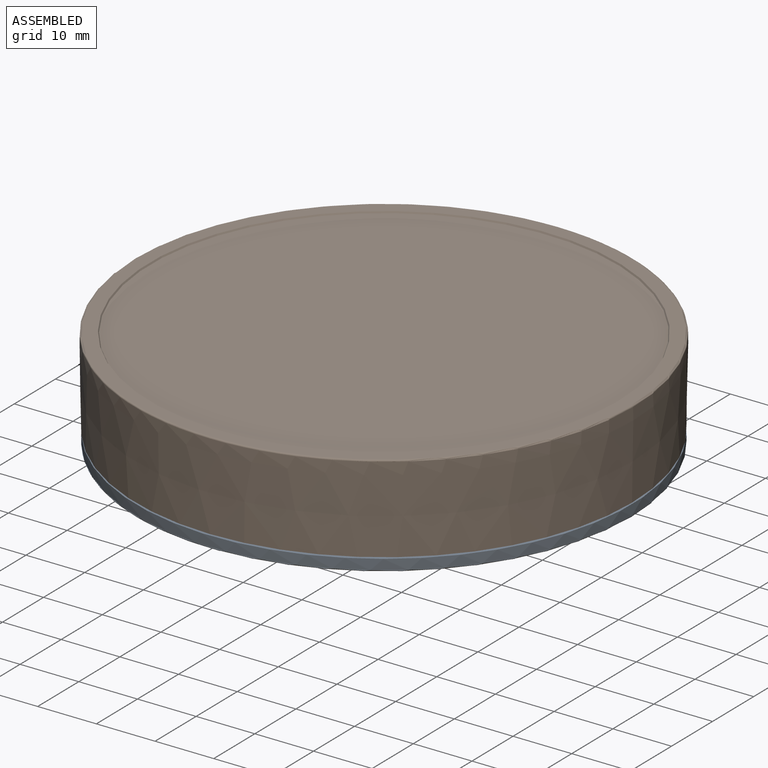
[diagram: assembled view]
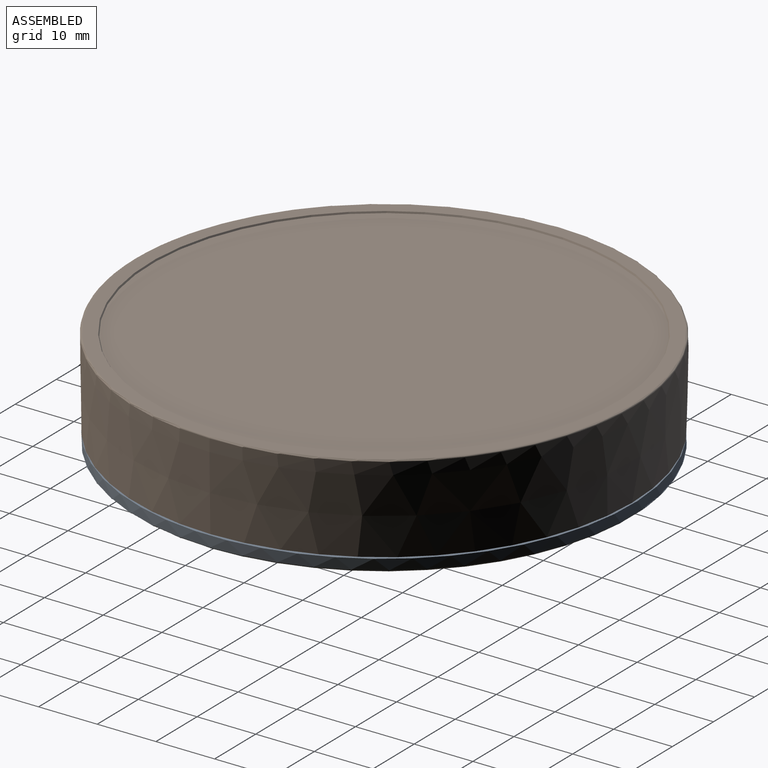
[diagram: assembled view, second angle]
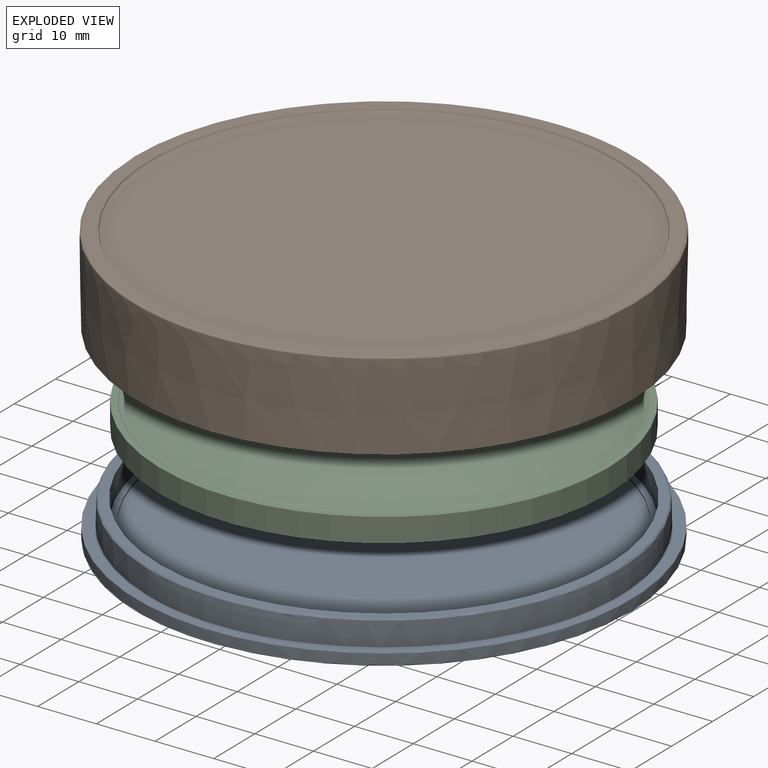
[diagram: exploded view]
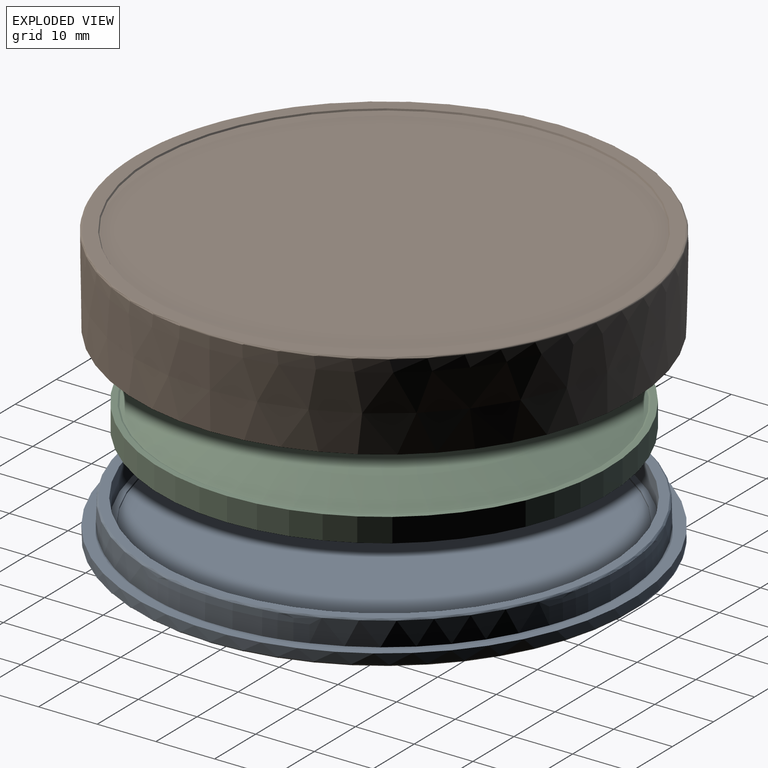
[diagram: exploded view, second angle]
ASSEMBLY  parts=3 mates=2
PART A: 45 faces, bbox 91.5x91.5x6.4 mm
  f0: cone r=40.17mm half-angle=1deg, axis (0,0,-1), area 592.7mm2, adj f10,f12,f13,f14,f15,f16,f19,f20
  f1: plane 79.83x79.83mm, normal (0,0,1), area 380.5mm2, adj f2,f44
  f2: cone r=38.3mm half-angle=1deg, axis (0,0,1), area 917.9mm2, adj f1,f3
  f3: plane 76.61x76.61mm, normal (0,0,1), area 240.2mm2, adj f2,f4
  f4: cone r=37.29mm half-angle=1deg, axis (0,0,1), area 59.5mm2, adj f3,f5
  f5: plane 74.57x74.57mm, normal (0,0,1), area 4367.9mm2, adj f4
  f6: plane 79.11x79.11mm, normal (0,0,-1), area 4915.6mm2, adj f7
  f7: cone r=39.7mm half-angle=30deg, axis (0,0,-1), area 73mm2, adj f6,f8
  f8: plane 83.99x83.99mm, normal (0,0,-1), area 587.8mm2, adj f7,f11
  f9: cone r=42.28mm half-angle=1deg, axis (0,0,1), area 473.4mm2, adj f10,f11
  f10: plane 84.56x84.56mm, normal (0,0,1), area 519.7mm2, adj f0,f9,f17,f18,f19,f25,f26,f27
  f11: torus R=41.99mm, axis (0,0,1), area 104.5mm2, adj f8,f9
  f12: cone r=35.81mm half-angle=4.7deg, axis (0,0,-1), area 5.6mm2, adj f0,f16,f18
  f13: cone r=35.81mm half-angle=4.7deg, axis (0,0,-1), area 5.6mm2, adj f0,f15,f16,f19
  f14: plane 2.88x0.05mm, normal (-0.36,-0.93,0), area 0mm2, adj f0,f18
  f15: plane 0x0mm, normal (-0.36,0.93,0), area 0mm2, adj f0,f13
  f16: cone r=40.27mm half-angle=4.7deg, axis (0,0,-1), area 16.7mm2, adj f0,f12,f13,f17
  f17: cone r=40.32mm half-angle=1deg, axis (0,0,-1), area 40.5mm2, adj f10,f16,f18,f19
  f18: cone r=35.86mm half-angle=1deg, axis (0,0,-1), area 20.2mm2, adj f10,f12,f14,f17
  f19: cone r=35.86mm half-angle=1deg, axis (0,0,-1), area 20.2mm2, adj f0,f10,f13,f17
  f20: cone r=35.81mm half-angle=4.7deg, axis (0,0,-1), area 5.6mm2, adj f0,f24,f26
  f21: cone r=35.81mm half-angle=4.7deg, axis (0,0,-1), area 5.6mm2, adj f0,f23,f24,f27
  f22: plane 2.88x0.05mm, normal (-0.93,0.36,0), area 0mm2, adj f0,f26
  f23: plane 0x0mm, normal (0.93,0.36,0), area 0mm2, adj f0,f21
  f24: cone r=40.27mm half-angle=4.7deg, axis (0,0,-1), area 16.7mm2, adj f0,f20,f21,f25
  f25: cone r=40.32mm half-angle=1deg, axis (0,0,-1), area 40.5mm2, adj f10,f24,f26,f27
  f26: cone r=35.86mm half-angle=1deg, axis (0,0,-1), area 20.2mm2, adj f10,f20,f22,f25
  f27: cone r=35.86mm half-angle=1deg, axis (0,0,-1), area 20.2mm2, adj f0,f10,f21,f25
  f28: cone r=35.81mm half-angle=4.7deg, axis (0,0,-1), area 5.6mm2, adj f0,f32,f34
  f29: cone r=35.81mm half-angle=4.7deg, axis (0,0,-1), area 5.6mm2, adj f0,f31,f32,f35
  f30: plane 2.88x0.05mm, normal (0.36,0.93,0), area 0mm2, adj f0,f34
  f31: plane 0x0mm, normal (0.36,-0.93,0), area 0mm2, adj f0,f29
  f32: cone r=40.27mm half-angle=4.7deg, axis (0,0,-1), area 16.7mm2, adj f28,f29,f33,f44
  f33: cone r=40.32mm half-angle=1deg, axis (0,0,-1), area 40.5mm2, adj f10,f32,f34,f35
  f34: cone r=35.86mm half-angle=1deg, axis (0,0,-1), area 20.2mm2, adj f10,f28,f30,f33
  f35: cone r=35.86mm half-angle=1deg, axis (0,0,-1), area 20.2mm2, adj f0,f10,f29,f33
  f36: cone r=35.81mm half-angle=4.7deg, axis (0,0,-1), area 5.6mm2, adj f0,f40,f42
  f37: cone r=35.81mm half-angle=4.7deg, axis (0,0,-1), area 5.6mm2, adj f0,f39,f40,f43
  f38: plane 2.88x0.05mm, normal (0.93,-0.36,0), area 0mm2, adj f0,f42
  f39: plane 0x0mm, normal (-0.93,-0.36,0), area 0mm2, adj f0,f37
  f40: cone r=40.27mm half-angle=4.7deg, axis (0,0,-1), area 16.7mm2, adj f0,f36,f37,f41
  f41: cone r=40.32mm half-angle=1deg, axis (0,0,-1), area 40.5mm2, adj f10,f40,f42,f43
  f42: cone r=35.86mm half-angle=1deg, axis (0,0,-1), area 20.2mm2, adj f10,f36,f38,f41
  f43: cone r=35.86mm half-angle=1deg, axis (0,0,-1), area 20.2mm2, adj f0,f10,f37,f41
  f44: cone r=40.18mm half-angle=45.5deg, axis (0,0,-1), area 91.2mm2, adj f0,f1,f32
PART B: 24 faces, bbox 91.9x91.9x15 mm
  f0: plane 79.45x79.44mm, normal (0,0,-1), area 4947.4mm2, adj f1,f2,f3,f11,f12,f14,f15,f16
  f1: cone r=39.73mm half-angle=3deg, axis (0,0,-1), area 692.4mm2, adj f0,f4,f12,f19
  f2: cone r=39.73mm half-angle=3deg, axis (0,0,-1), area 692.4mm2, adj f0,f4,f15,f20
  f3: cone r=39.73mm half-angle=3deg, axis (0,0,-1), area 692.4mm2, adj f0,f4,f11,f16
  f4: cone r=40.24mm half-angle=1deg, axis (0,0,-1), area 1090.9mm2, adj f1,f2,f3,f5,f13,f17,f21
  f5: plane 84.56x84.56mm, normal (0,0,-1), area 527.9mm2, adj f4,f6
  f6: cone r=42.28mm half-angle=1deg, axis (0,0,1), area 3389.8mm2, adj f5,f7
  f7: cone r=42.5mm half-angle=1deg, axis (0,0,-1), area 543.7mm2, adj f6,f23
  f8: plane 84.42x84.42mm, normal (0,0,1), area 591mm2, adj f9,f23
  f9: cone r=39.92mm half-angle=30deg, axis (0,0,1), area 73.4mm2, adj f8,f10
  f10: plane 79.55x79.55mm, normal (0,0,1), area 4969.9mm2, adj f9
  f11: plane 8.41x2.68mm, normal (0,1,-0.02), area 20.1mm2, adj f0,f3,f13,f14
  f12: plane 8.41x2.68mm, normal (0,-1,-0.02), area 20.1mm2, adj f0,f1,f13,f14
  f13: plane 2.54x1.27mm, normal (0,0,-1), area 3.2mm2, adj f4,f11,f12,f14
  f14: plane 8.41x1.56mm, normal (-1,0,-0.02), area 11.9mm2, adj f0,f11,f12,f13
  f15: plane 8.41x2.4mm, normal (-0.87,-0.5,-0.02), area 20.1mm2, adj f0,f2,f17,f18
  f16: plane 8.41x2.25mm, normal (0.87,0.5,-0.02), area 20.1mm2, adj f0,f3,f17,f18
  f17: plane 2.83x2.37mm, normal (0,0,-1), area 3.2mm2, adj f4,f15,f16,f18
  f18: plane 8.41x1.35mm, normal (0.5,-0.87,-0.02), area 11.9mm2, adj f0,f15,f16,f17
  f19: plane 8.41x2.25mm, normal (0.87,-0.5,-0.02), area 20.1mm2, adj f0,f1,f21,f22
  f20: plane 8.41x2.4mm, normal (-0.87,0.5,-0.02), area 20.1mm2, adj f0,f2,f21,f22
  f21: plane 2.83x2.37mm, normal (0,0,-1), area 3.2mm2, adj f4,f19,f20,f22
  f22: plane 8.41x1.35mm, normal (0.5,0.87,-0.02), area 11.9mm2, adj f0,f19,f20,f21
  f23: torus R=42.21mm, axis (0,0,-1), area 105mm2, adj f7,f8
PART C: 7 faces, bbox 76.5x76.5x11.2 mm
  f0: cone r=37.22mm half-angle=45deg, axis (0,0,-1), area 83.7mm2, adj f1,f6
  f1: plane 76.48x76.48mm, normal (0,0,-1), area 240.9mm2, adj f0,f2
  f2: cylinder r=38.24mm len=76.48mm, axis (0,0,1), area 976.4mm2, adj f1,f3
  f3: plane 76.48x76.48mm, normal (0,0,1), area 240.9mm2, adj f2,f4
  f4: cone r=37.22mm half-angle=63.4deg, axis (0,0,1), area 66.2mm2, adj f3,f5
  f5: sphere r=97.7mm, area 4459.6mm2, adj f4
  f6: sphere r=96.15mm, area 4465.4mm2, adj f0
PLACE A t=(0.05,-0.09,-8.38)mm
PLACE B t=(0.05,-0.09,-8.38)mm
PLACE C t=(0.05,-0.09,-8.38)mm fixed
MATE fastened C.f0 <-> B.f4  axis (0,0,1) through (0.05,-0.09,-1.65)mm
MATE fastened A.f0 <-> C.f2  axis (0,0,1) through (0.05,-0.09,-5.71)mm
